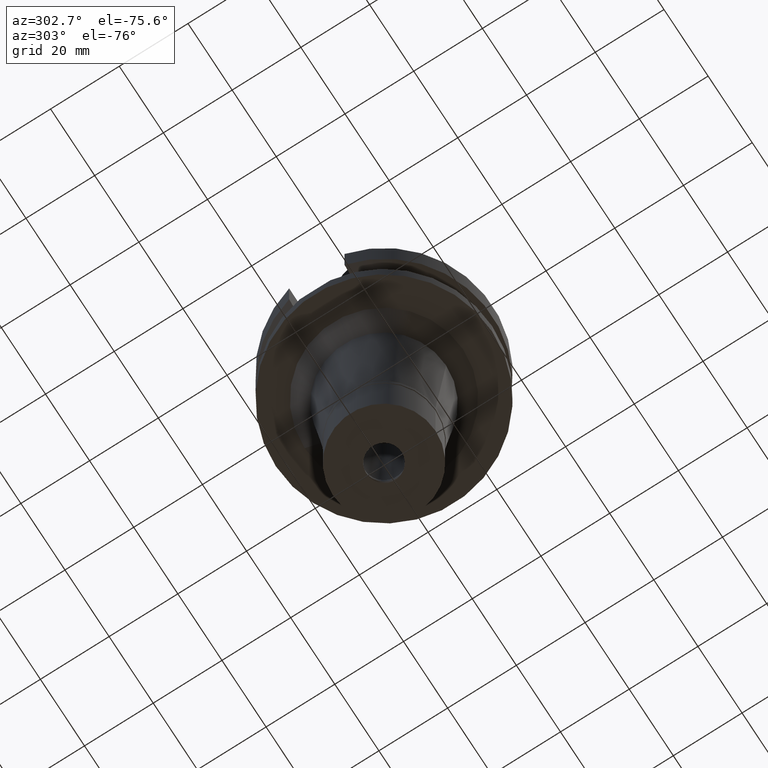
[diagram: clean part render]
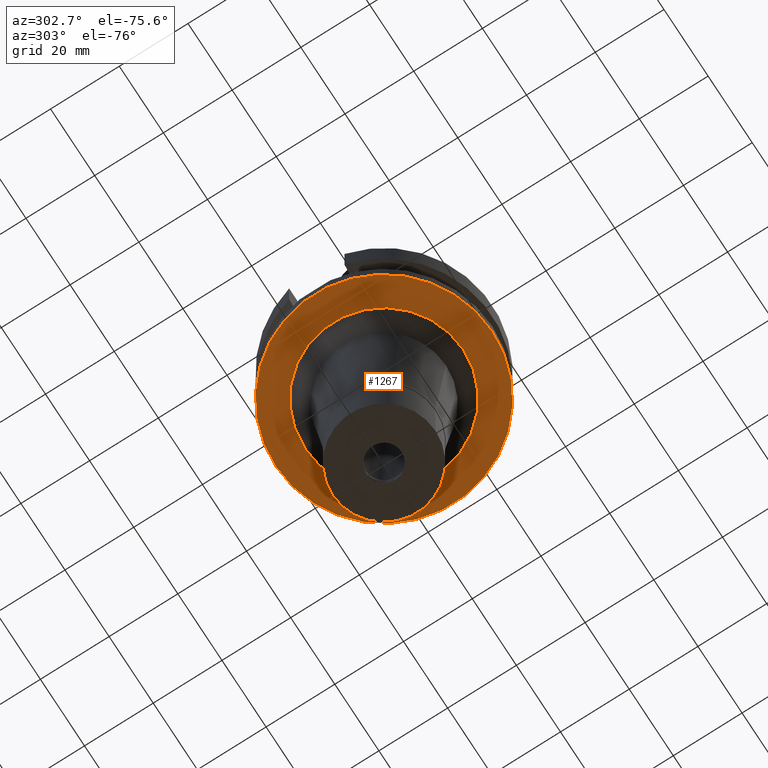
[diagram: same view with one face highlighted and labeled with its STEP entity id]
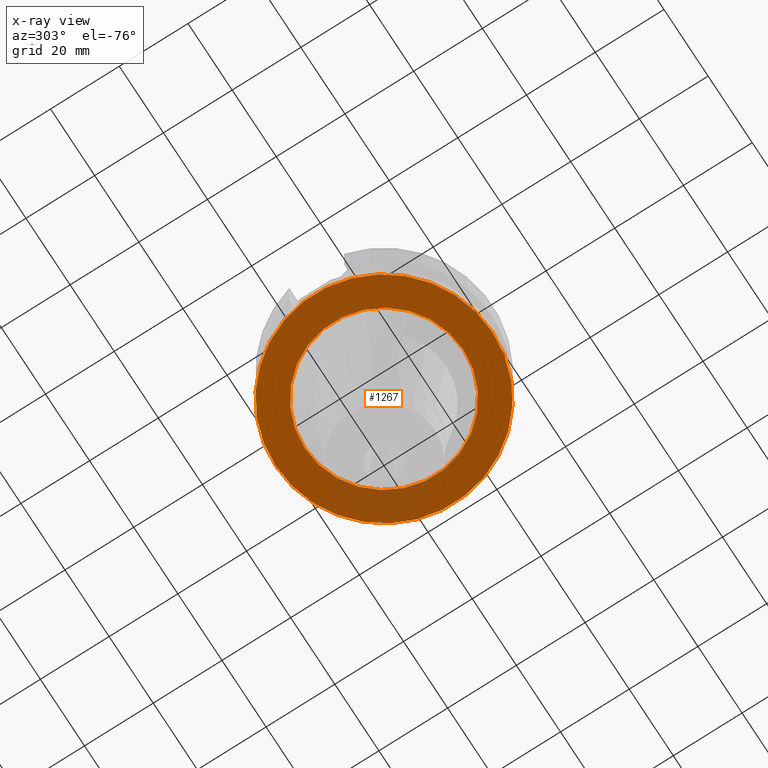
[diagram: x-ray of the same camera — body ghosted, the highlighted face saturated]
A machine part, auxiliary view. The second image highlights one B-rep face of the part: STEP entity #1267.
The next image is the same camera in x-ray: the body ghosted, the highlighted face saturated — about 14% of this face is hidden behind the body in this view.
In plain terms, the highlighted planar face has unit normal (0, 0, -1).
Its self-contained STEP definition (entity closure, byte-faithful):
#169 = DIRECTION ( 'NONE',  ( 0.0000000000000000000, 0.0000000000000000000, -1.000000000000000000 ) ) ;
#210 = CARTESIAN_POINT ( 'NONE',  ( 0.0000000000000000000, 0.0000000000000000000, -27.00000000000000000 ) ) ;
#243 = DIRECTION ( 'NONE',  ( 0.0000000000000000000, -1.000000000000000000, 0.0000000000000000000 ) ) ;
#334 = ORIENTED_EDGE ( 'NONE', *, *, #703, .F. ) ;
#356 = CARTESIAN_POINT ( 'NONE',  ( 0.0000000000000000000, -23.07960095610999929, -27.00000000000000000 ) ) ;
#401 = CARTESIAN_POINT ( 'NONE',  ( 0.0000000000000000000, -31.50000000000000000, -27.00000000000000000 ) ) ;
#426 = CARTESIAN_POINT ( 'NONE',  ( 0.0000000000000000000, 23.07960095610999929, -27.00000000000000000 ) ) ;
#469 = ORIENTED_EDGE ( 'NONE', *, *, #1834, .F. ) ;
#495 = CIRCLE ( 'NONE', #3091, 23.07960095610999929 ) ;
#502 = DIRECTION ( 'NONE',  ( 0.0000000000000000000, 0.0000000000000000000, -1.000000000000000000 ) ) ;
#586 = VERTEX_POINT ( 'NONE', #426 ) ;
#589 = AXIS2_PLACEMENT_3D ( 'NONE', #2905, #1907, #927 ) ;
#652 = FACE_OUTER_BOUND ( 'NONE', #2441, .T. ) ;
#703 = EDGE_CURVE ( 'NONE', #586, #2552, #2526, .T. ) ;
#899 = ORIENTED_EDGE ( 'NONE', *, *, #1936, .F. ) ;
#906 = CIRCLE ( 'NONE', #589, 31.50000000000000000 ) ;
#914 = DIRECTION ( 'NONE',  ( 0.0000000000000000000, -1.000000000000000000, 0.0000000000000000000 ) ) ;
#927 = DIRECTION ( 'NONE',  ( 0.0000000000000000000, 1.000000000000000000, 0.0000000000000000000 ) ) ;
#1267 = ADVANCED_FACE ( 'NONE', ( #652, #1354 ), #2323, .T. ) ;
#1354 = FACE_BOUND ( 'NONE', #3120, .T. ) ;
#1391 = CARTESIAN_POINT ( 'NONE',  ( 0.0000000000000000000, 0.0000000000000000000, -27.00000000000000000 ) ) ;
#1517 = CARTESIAN_POINT ( 'NONE',  ( 0.0000000000000000000, 31.50000000000000000, -27.00000000000000000 ) ) ;
#1651 = DIRECTION ( 'NONE',  ( 0.0000000000000000000, 1.000000000000000000, 0.0000000000000000000 ) ) ;
#1834 = EDGE_CURVE ( 'NONE', #2552, #586, #495, .T. ) ;
#1907 = DIRECTION ( 'NONE',  ( 0.0000000000000000000, 0.0000000000000000000, 1.000000000000000000 ) ) ;
#1936 = EDGE_CURVE ( 'NONE', #2282, #2903, #2735, .T. ) ;
#1978 = EDGE_CURVE ( 'NONE', #2903, #2282, #906, .T. ) ;
#2086 = CARTESIAN_POINT ( 'NONE',  ( 0.0000000000000000000, 0.0000000000000000000, -27.00000000000000000 ) ) ;
#2183 = DIRECTION ( 'NONE',  ( 0.0000000000000000000, -1.000000000000000000, 0.0000000000000000000 ) ) ;
#2282 = VERTEX_POINT ( 'NONE', #401 ) ;
#2323 = PLANE ( 'NONE',  #2730 ) ;
#2419 = AXIS2_PLACEMENT_3D ( 'NONE', #2893, #2856, #243 ) ;
#2425 = AXIS2_PLACEMENT_3D ( 'NONE', #2086, #2615, #1651 ) ;
#2441 = EDGE_LOOP ( 'NONE', ( #2703, #899 ) ) ;
#2526 = CIRCLE ( 'NONE', #2425, 23.07960095610999929 ) ;
#2552 = VERTEX_POINT ( 'NONE', #356 ) ;
#2615 = DIRECTION ( 'NONE',  ( 0.0000000000000000000, 0.0000000000000000000, -1.000000000000000000 ) ) ;
#2703 = ORIENTED_EDGE ( 'NONE', *, *, #1978, .F. ) ;
#2730 = AXIS2_PLACEMENT_3D ( 'NONE', #1391, #169, #914 ) ;
#2735 = CIRCLE ( 'NONE', #2419, 31.50000000000000000 ) ;
#2856 = DIRECTION ( 'NONE',  ( 0.0000000000000000000, 0.0000000000000000000, 1.000000000000000000 ) ) ;
#2893 = CARTESIAN_POINT ( 'NONE',  ( 0.0000000000000000000, 2.116618295306000150E-14, -27.00000000000000000 ) ) ;
#2903 = VERTEX_POINT ( 'NONE', #1517 ) ;
#2905 = CARTESIAN_POINT ( 'NONE',  ( 0.0000000000000000000, 2.116618295306000150E-14, -27.00000000000000000 ) ) ;
#3091 = AXIS2_PLACEMENT_3D ( 'NONE', #210, #502, #2183 ) ;
#3120 = EDGE_LOOP ( 'NONE', ( #334, #469 ) ) ;